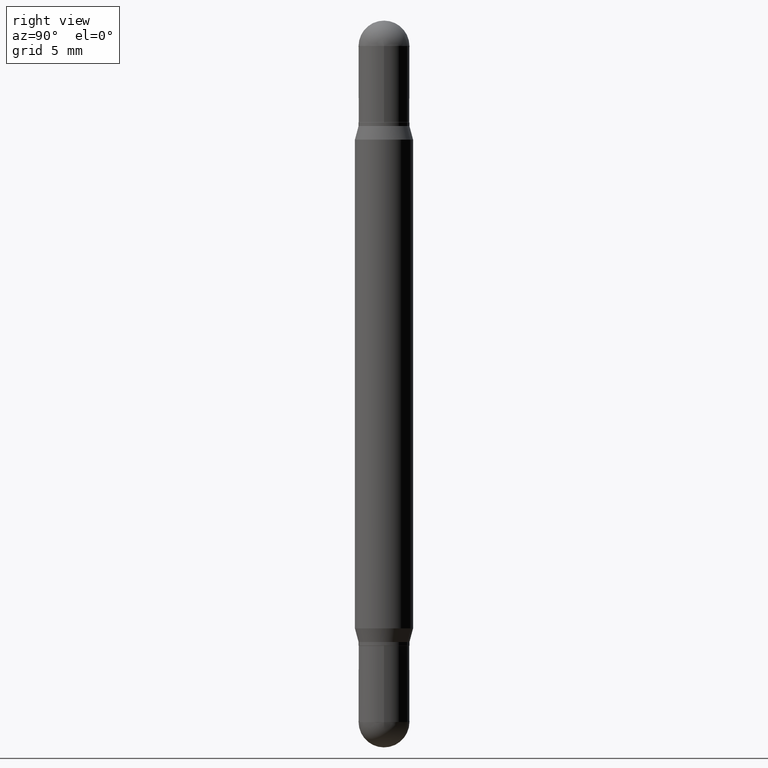
[diagram: clean part render]
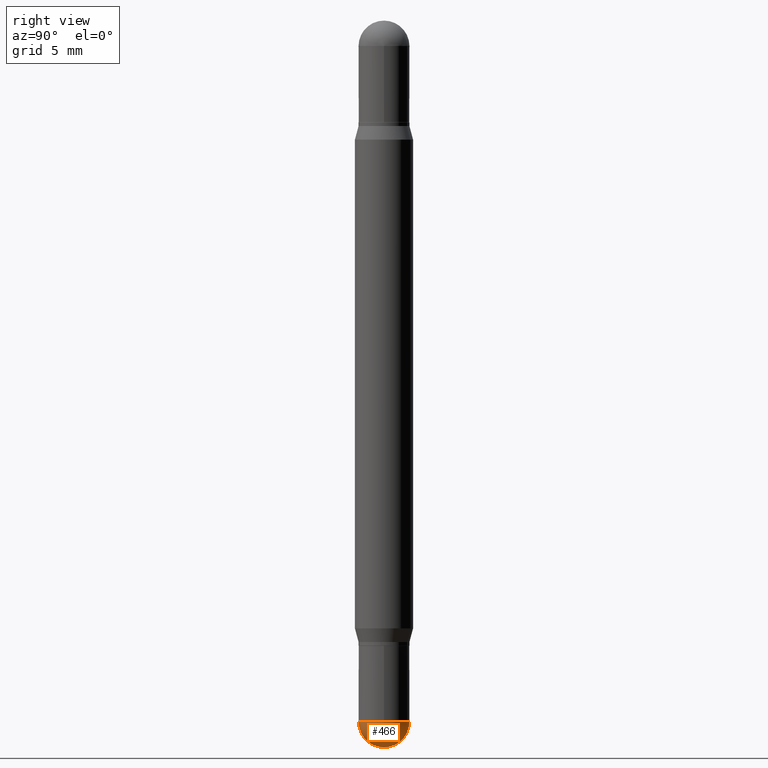
[diagram: same view with one face highlighted and labeled with its STEP entity id]
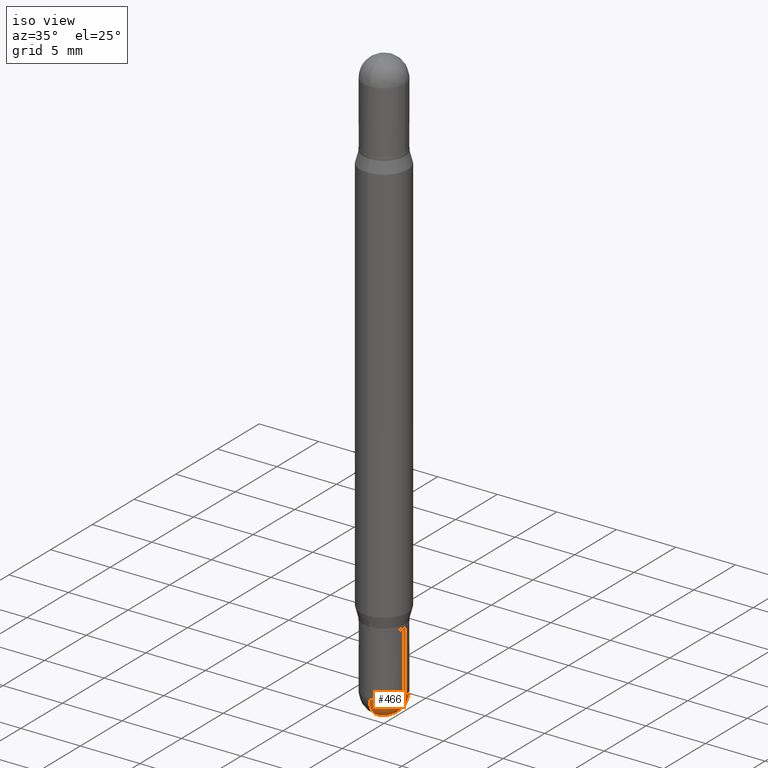
[diagram: same view with one face highlighted and labeled with its STEP entity id]
A machine part, right view. The second image highlights one B-rep face of the part: STEP entity #466.
A second angle (iso view) of the same face is appended — the face is thin or edge-on in the first view.
In plain terms, the highlighted spherical surface has radius 1.7501 mm.
Its self-contained STEP definition (entity closure, byte-faithful):
#7 = DIRECTION ( 'NONE',  ( 1.000000000000000000, -6.982962677686273021E-15, 0.000000000000000000 ) ) ;
#53 = EDGE_CURVE ( 'NONE', #1006, #160, #657, .T. ) ;
#156 = FACE_OUTER_BOUND ( 'NONE', #750, .T. ) ;
#160 = VERTEX_POINT ( 'NONE', #798 ) ;
#173 = ORIENTED_EDGE ( 'NONE', *, *, #53, .F. ) ;
#177 = AXIS2_PLACEMENT_3D ( 'NONE', #782, #696, #614 ) ;
#206 = DIRECTION ( 'NONE',  ( -7.105427357601001859E-15, -1.000000000000000000, 0.000000000000000000 ) ) ;
#282 = ORIENTED_EDGE ( 'NONE', *, *, #1051, .T. ) ;
#291 = DIRECTION ( 'NONE',  ( 1.000000000000000000, -6.982962677686273021E-15, 0.000000000000000000 ) ) ;
#303 = EDGE_CURVE ( 'NONE', #160, #667, #843, .T. ) ;
#431 = SPHERICAL_SURFACE ( 'NONE', #944, 0.06889999999999996128 ) ;
#447 = CARTESIAN_POINT ( 'NONE',  ( 4.851357352610053575E-29, -6.819347608944073688E-15, -1.968500000000000139 ) ) ;
#456 = CIRCLE ( 'NONE', #1088, 0.06890000000000007230 ) ;
#466 = ADVANCED_FACE ( 'NONE', ( #156 ), #431, .T. ) ;
#507 = DIRECTION ( 'NONE',  ( 6.982962677686265922E-15, 1.000000000000000000, -3.964946289788482474E-15 ) ) ;
#527 = CARTESIAN_POINT ( 'NONE',  ( 4.811261284926304785E-16, 0.06889999999999341096, -1.899600000000000399 ) ) ;
#614 = DIRECTION ( 'NONE',  ( 6.982962677686265922E-15, 1.000000000000000000, 0.000000000000000000 ) ) ;
#657 = CIRCLE ( 'NONE', #789, 0.06889999999999996128 ) ;
#667 = VERTEX_POINT ( 'NONE', #899 ) ;
#683 = ORIENTED_EDGE ( 'NONE', *, *, #977, .F. ) ;
#696 = DIRECTION ( 'NONE',  ( 1.000000000000000000, -6.982962677686265922E-15, 4.883557194083112340E-29 ) ) ;
#724 = CARTESIAN_POINT ( 'NONE',  ( 4.645412544229285965E-29, -6.632417951266439838E-15, -1.899600000000000177 ) ) ;
#750 = EDGE_LOOP ( 'NONE', ( #173, #282, #683, #1026 ) ) ;
#751 = DIRECTION ( 'NONE',  ( -2.445468806185136597E-29, 3.491481338843145583E-15, 1.000000000000000000 ) ) ;
#766 = CARTESIAN_POINT ( 'NONE',  ( 4.679918503997674770E-29, -6.583003452920844326E-15, -1.899600000000000177 ) ) ;
#782 = CARTESIAN_POINT ( 'NONE',  ( 4.679918503997674770E-29, -6.583003452920844326E-15, -1.899600000000000177 ) ) ;
#789 = AXIS2_PLACEMENT_3D ( 'NONE', #974, #816, #206 ) ;
#797 = CARTESIAN_POINT ( 'NONE',  ( 4.645412544229285965E-29, -6.632417951266439838E-15, -1.899600000000000177 ) ) ;
#798 = CARTESIAN_POINT ( 'NONE',  ( -4.895639449386624073E-16, -0.06890000000000662261, -1.899599999999999955 ) ) ;
#816 = DIRECTION ( 'NONE',  ( -1.000000000000000000, 7.105427357601001070E-15, -4.926315508542082329E-29 ) ) ;
#843 = CIRCLE ( 'NONE', #906, 0.06890000000000007230 ) ;
#899 = CARTESIAN_POINT ( 'NONE',  ( 0.06890000000000008618, -6.752699483389584195E-15, -1.899600000000000177 ) ) ;
#906 = AXIS2_PLACEMENT_3D ( 'NONE', #724, #751, #291 ) ;
#922 = VERTEX_POINT ( 'NONE', #527 ) ;
#930 = DIRECTION ( 'NONE',  ( -1.000000000000000000, 6.982962677686265922E-15, -4.883557194083112901E-29 ) ) ;
#944 = AXIS2_PLACEMENT_3D ( 'NONE', #766, #930, #507 ) ;
#974 = CARTESIAN_POINT ( 'NONE',  ( 4.679918503997674770E-29, -6.583003452920844326E-15, -1.899600000000000177 ) ) ;
#977 = EDGE_CURVE ( 'NONE', #667, #922, #456, .T. ) ;
#1006 = VERTEX_POINT ( 'NONE', #447 ) ;
#1025 = DIRECTION ( 'NONE',  ( -2.445468806185136597E-29, 3.491481338843145583E-15, 1.000000000000000000 ) ) ;
#1026 = ORIENTED_EDGE ( 'NONE', *, *, #303, .F. ) ;
#1051 = EDGE_CURVE ( 'NONE', #1006, #922, #1068, .T. ) ;
#1068 = CIRCLE ( 'NONE', #177, 0.06889999999999996128 ) ;
#1088 = AXIS2_PLACEMENT_3D ( 'NONE', #797, #1025, #7 ) ;